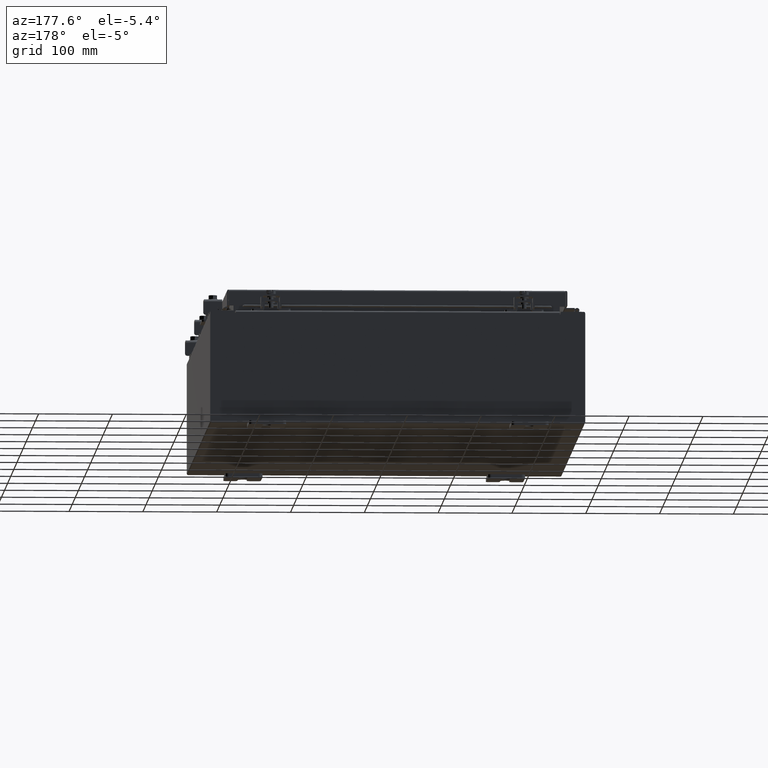
[diagram: clean part render]
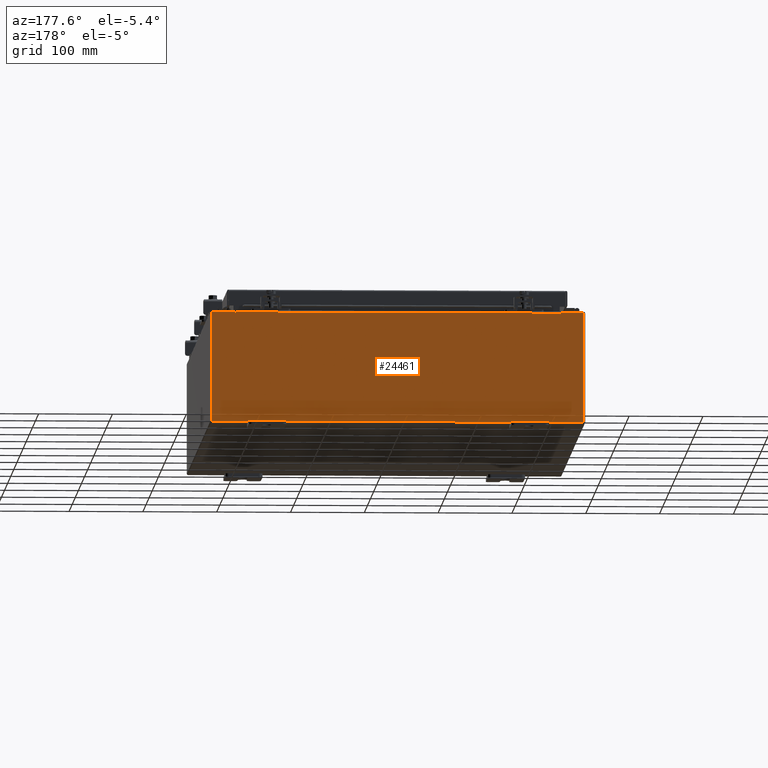
[diagram: same view with one face highlighted and labeled with its STEP entity id]
A machine part, auxiliary view. The second image highlights one B-rep face of the part: STEP entity #24461.
In plain terms, the highlighted planar face has unit normal (0, -1, 0).
Its self-contained STEP definition (entity closure, byte-faithful):
#110 = DIRECTION ( 'NONE',  ( -6.510859170600007400E-014, 0.0000000000000000000, -1.000000000000000000 ) ) ;
#227 = DIRECTION ( 'NONE',  ( -1.000000000000000000, -0.0000000000000000000, -0.0000000000000000000 ) ) ;
#248 = CARTESIAN_POINT ( 'NONE',  ( -9.925300000000000000, 0.0000000000000000000, 2.925300000000001300 ) ) ;
#409 = CARTESIAN_POINT ( 'NONE',  ( 9.925300000000000000, 0.0000000000000000000, -2.925299999999999600 ) ) ;
#545 = CARTESIAN_POINT ( 'NONE',  ( 8.637200000000000000, 0.0000000000000000000, 0.0000000000000000000 ) ) ;
#779 = EDGE_CURVE ( 'NONE', #14259, #3685, #13107, .T. ) ;
#1075 = ORIENTED_EDGE ( 'NONE', *, *, #30185, .F. ) ;
#1490 = LINE ( 'NONE', #545, #16183 ) ;
#1816 = EDGE_CURVE ( 'NONE', #16428, #14259, #3364, .T. ) ;
#1923 = VERTEX_POINT ( 'NONE', #31367 ) ;
#2825 = VECTOR ( 'NONE', #5880, 39.37007874015748100 ) ;
#3364 = LINE ( 'NONE', #7544, #27669 ) ;
#3516 = DIRECTION ( 'NONE',  ( 0.0000000000000000000, 0.0000000000000000000, 1.000000000000000000 ) ) ;
#3685 = VERTEX_POINT ( 'NONE', #23361 ) ;
#3777 = EDGE_CURVE ( 'NONE', #5966, #31714, #4655, .T. ) ;
#4366 = VECTOR ( 'NONE', #5642, 39.37007874015748100 ) ;
#4643 = ORIENTED_EDGE ( 'NONE', *, *, #779, .T. ) ;
#4655 = LINE ( 'NONE', #23436, #2825 ) ;
#5642 = DIRECTION ( 'NONE',  ( 0.0000000000000000000, 0.0000000000000000000, -1.000000000000000000 ) ) ;
#5880 = DIRECTION ( 'NONE',  ( 1.000000000000000000, 0.0000000000000000000, 0.0000000000000000000 ) ) ;
#5966 = VERTEX_POINT ( 'NONE', #17336 ) ;
#7099 = EDGE_CURVE ( 'NONE', #1923, #19863, #1490, .T. ) ;
#7544 = CARTESIAN_POINT ( 'NONE',  ( 9.925300000000000000, 0.0000000000000000000, 2.925300000000001300 ) ) ;
#7627 = EDGE_CURVE ( 'NONE', #35639, #20938, #8351, .T. ) ;
#7864 = CARTESIAN_POINT ( 'NONE',  ( 8.655875000000000000, 0.0000000000000000000, 2.874949999999999700 ) ) ;
#7974 = CARTESIAN_POINT ( 'NONE',  ( -8.655874999999996400, 0.0000000000000000000, 2.874949999999999700 ) ) ;
#7988 = VECTOR ( 'NONE', #31757, 39.37007874015748100 ) ;
#8351 = LINE ( 'NONE', #17692, #22992 ) ;
#9070 = LINE ( 'NONE', #13876, #16868 ) ;
#9493 = ORIENTED_EDGE ( 'NONE', *, *, #25592, .F. ) ;
#9968 = ORIENTED_EDGE ( 'NONE', *, *, #1816, .T. ) ;
#10309 = EDGE_CURVE ( 'NONE', #35639, #16428, #14573, .T. ) ;
#10501 = DIRECTION ( 'NONE',  ( 0.0000000000000000000, 0.0000000000000000000, -1.000000000000000000 ) ) ;
#10553 = VERTEX_POINT ( 'NONE', #22789 ) ;
#10812 = DIRECTION ( 'NONE',  ( 0.0000000000000000000, 0.0000000000000000000, -1.000000000000000000 ) ) ;
#10912 = DIRECTION ( 'NONE',  ( 0.0000000000000000000, 0.0000000000000000000, -1.000000000000000000 ) ) ;
#11261 = ORIENTED_EDGE ( 'NONE', *, *, #10309, .T. ) ;
#11263 = LINE ( 'NONE', #23210, #4366 ) ;
#11474 = CARTESIAN_POINT ( 'NONE',  ( 8.674550000000000000, 0.0000000000000000000, 2.874949999999999700 ) ) ;
#11621 = DIRECTION ( 'NONE',  ( 0.0000000000000000000, -0.0000000000000000000, -1.000000000000000000 ) ) ;
#11701 = ORIENTED_EDGE ( 'NONE', *, *, #7627, .F. ) ;
#12840 = AXIS2_PLACEMENT_3D ( 'NONE', #25597, #29157, #11621 ) ;
#13028 = EDGE_CURVE ( 'NONE', #3685, #5966, #36872, .T. ) ;
#13107 = LINE ( 'NONE', #14873, #27747 ) ;
#13349 = CIRCLE ( 'NONE', #24837, 0.01867500000000003900 ) ;
#13876 = CARTESIAN_POINT ( 'NONE',  ( -8.674549999999996400, 0.0000000000000000000, 0.0000000000000000000 ) ) ;
#13984 = CARTESIAN_POINT ( 'NONE',  ( 9.925300000000000000, 0.0000000000000000000, 2.925300000000001300 ) ) ;
#14227 = CARTESIAN_POINT ( 'NONE',  ( -8.637200000000000000, 0.0000000000000000000, 2.912300000000001000 ) ) ;
#14259 = VERTEX_POINT ( 'NONE', #409 ) ;
#14573 = LINE ( 'NONE', #15776, #29210 ) ;
#14654 = FACE_OUTER_BOUND ( 'NONE', #19966, .T. ) ;
#14775 = EDGE_CURVE ( 'NONE', #21732, #36398, #11263, .T. ) ;
#14873 = CARTESIAN_POINT ( 'NONE',  ( -9.925300000000000000, 0.0000000000000000000, -2.925299999999999600 ) ) ;
#14894 = DIRECTION ( 'NONE',  ( -0.0000000000000000000, -0.0000000000000000000, 1.000000000000000000 ) ) ;
#15573 = CARTESIAN_POINT ( 'NONE',  ( -8.674549999999996400, 0.0000000000000000000, 2.925300000000001300 ) ) ;
#15776 = CARTESIAN_POINT ( 'NONE',  ( -9.925300000000000000, 0.0000000000000000000, 2.925300000000001300 ) ) ;
#15778 = LINE ( 'NONE', #14227, #7988 ) ;
#16183 = VECTOR ( 'NONE', #3516, 39.37007874015748100 ) ;
#16428 = VERTEX_POINT ( 'NONE', #13984 ) ;
#16847 = ORIENTED_EDGE ( 'NONE', *, *, #14775, .F. ) ;
#16868 = VECTOR ( 'NONE', #28450, 39.37007874015748100 ) ;
#17336 = CARTESIAN_POINT ( 'NONE',  ( -9.925300000000000000, 0.0000000000000000000, 2.925300000000001300 ) ) ;
#17692 = CARTESIAN_POINT ( 'NONE',  ( 8.674549999999813500, 0.0000000000000000000, -5.649461650897696500E-013 ) ) ;
#19643 = CARTESIAN_POINT ( 'NONE',  ( -8.637199999999996400, 0.0000000000000000000, 2.874949999999999700 ) ) ;
#19863 = VERTEX_POINT ( 'NONE', #21028 ) ;
#19966 = EDGE_LOOP ( 'NONE', ( #9493, #23007, #16847, #30229, #29077, #1075, #11701, #11261, #9968, #4643, #32893, #30858 ) ) ;
#20938 = VERTEX_POINT ( 'NONE', #11474 ) ;
#21028 = CARTESIAN_POINT ( 'NONE',  ( 8.637200000000000000, 0.0000000000000000000, 2.912300000000001000 ) ) ;
#21517 = DIRECTION ( 'NONE',  ( 1.000000000000000000, 0.0000000000000000000, 0.0000000000000000000 ) ) ;
#21732 = VERTEX_POINT ( 'NONE', #27166 ) ;
#22789 = CARTESIAN_POINT ( 'NONE',  ( -8.674549999999996400, 0.0000000000000000000, 2.874949999999999700 ) ) ;
#22992 = VECTOR ( 'NONE', #110, 39.37007874015748100 ) ;
#23007 = ORIENTED_EDGE ( 'NONE', *, *, #23784, .F. ) ;
#23210 = CARTESIAN_POINT ( 'NONE',  ( -8.637199999999996400, 0.0000000000000000000, 0.0000000000000000000 ) ) ;
#23361 = CARTESIAN_POINT ( 'NONE',  ( -9.925300000000000000, 0.0000000000000000000, -2.925299999999999600 ) ) ;
#23436 = CARTESIAN_POINT ( 'NONE',  ( -9.925300000000000000, 0.0000000000000000000, 2.925300000000001300 ) ) ;
#23784 = EDGE_CURVE ( 'NONE', #36398, #10553, #13349, .T. ) ;
#24461 = ADVANCED_FACE ( 'NONE', ( #14654 ), #26216, .F. ) ;
#24837 = AXIS2_PLACEMENT_3D ( 'NONE', #7974, #28443, #10912 ) ;
#25592 = EDGE_CURVE ( 'NONE', #10553, #31714, #9070, .T. ) ;
#25597 = CARTESIAN_POINT ( 'NONE',  ( 0.0000000000000000000, 0.0000000000000000000, 0.0000000000000000000 ) ) ;
#26216 = PLANE ( 'NONE',  #12840 ) ;
#27166 = CARTESIAN_POINT ( 'NONE',  ( -8.637199999999996400, 0.0000000000000000000, 2.912300000000001000 ) ) ;
#27669 = VECTOR ( 'NONE', #10501, 39.37007874015748100 ) ;
#27747 = VECTOR ( 'NONE', #227, 39.37007874015748100 ) ;
#28349 = DIRECTION ( 'NONE',  ( -0.0000000000000000000, 1.000000000000000000, -0.0000000000000000000 ) ) ;
#28443 = DIRECTION ( 'NONE',  ( -0.0000000000000000000, 1.000000000000000000, -0.0000000000000000000 ) ) ;
#28450 = DIRECTION ( 'NONE',  ( 0.0000000000000000000, 0.0000000000000000000, 1.000000000000000000 ) ) ;
#28706 = AXIS2_PLACEMENT_3D ( 'NONE', #7864, #28349, #10812 ) ;
#29067 = VECTOR ( 'NONE', #14894, 39.37007874015748100 ) ;
#29077 = ORIENTED_EDGE ( 'NONE', *, *, #7099, .F. ) ;
#29157 = DIRECTION ( 'NONE',  ( 0.0000000000000000000, -1.000000000000000000, 0.0000000000000000000 ) ) ;
#29210 = VECTOR ( 'NONE', #21517, 39.37007874015748100 ) ;
#30185 = EDGE_CURVE ( 'NONE', #20938, #1923, #32377, .T. ) ;
#30229 = ORIENTED_EDGE ( 'NONE', *, *, #35243, .T. ) ;
#30858 = ORIENTED_EDGE ( 'NONE', *, *, #3777, .T. ) ;
#31367 = CARTESIAN_POINT ( 'NONE',  ( 8.637200000000000000, 0.0000000000000000000, 2.874949999999999700 ) ) ;
#31714 = VERTEX_POINT ( 'NONE', #15573 ) ;
#31757 = DIRECTION ( 'NONE',  ( 1.000000000000000000, 0.0000000000000000000, 0.0000000000000000000 ) ) ;
#32377 = CIRCLE ( 'NONE', #28706, 0.01867500000000003900 ) ;
#32893 = ORIENTED_EDGE ( 'NONE', *, *, #13028, .T. ) ;
#33540 = CARTESIAN_POINT ( 'NONE',  ( 8.674550000000001800, 0.0000000000000000000, 2.925300000000001300 ) ) ;
#35243 = EDGE_CURVE ( 'NONE', #21732, #19863, #15778, .T. ) ;
#35639 = VERTEX_POINT ( 'NONE', #33540 ) ;
#36398 = VERTEX_POINT ( 'NONE', #19643 ) ;
#36872 = LINE ( 'NONE', #248, #29067 ) ;